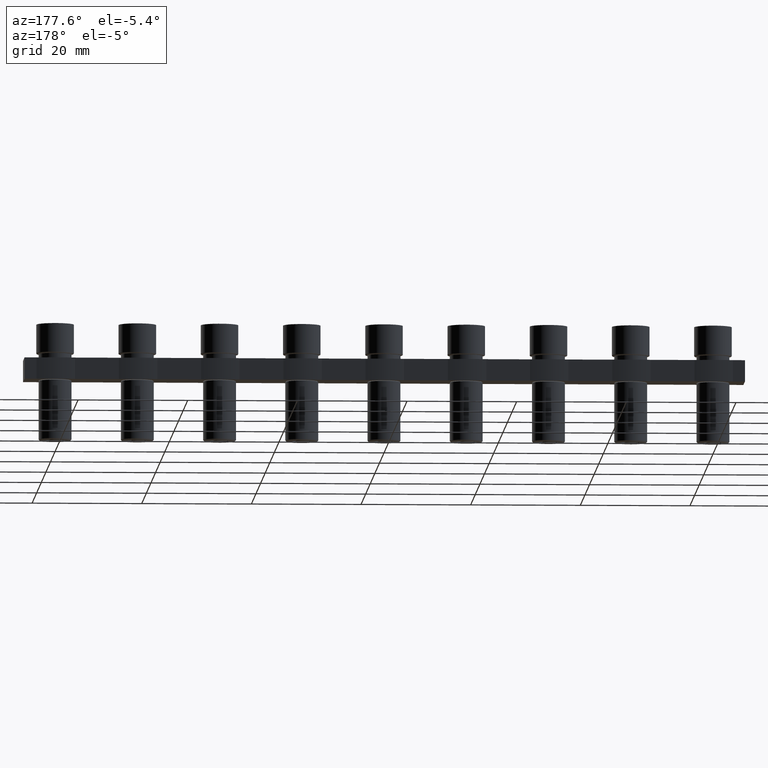
[diagram: clean part render]
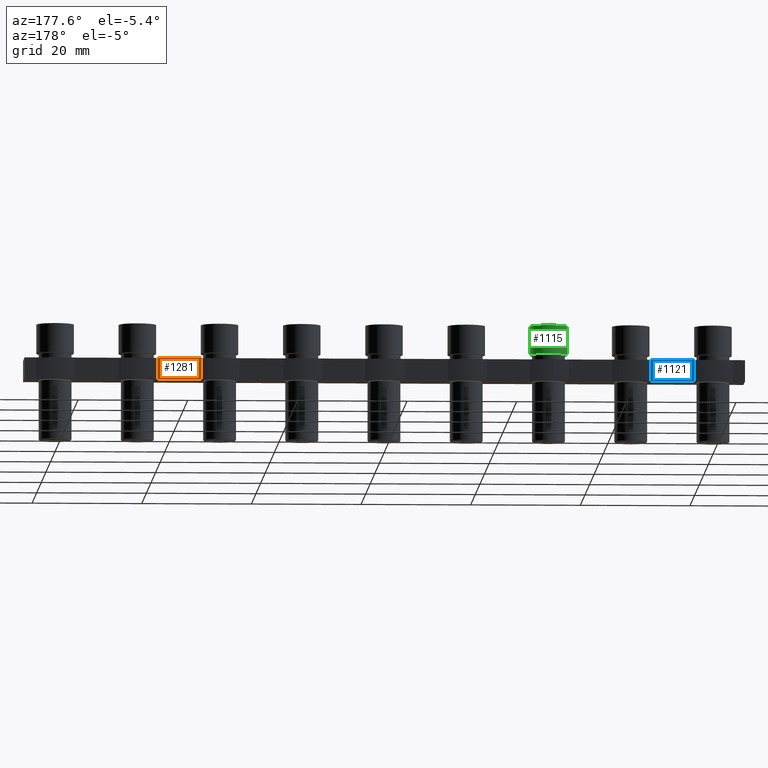
[diagram: same view with three faces highlighted in distinct colors, each labeled with its STEP entity id]
A machine part, auxiliary view with three faces highlighted in distinct colors.
Their STEP definitions:

[orange] entity #1281 — the highlighted planar face has unit normal (0, -1, 0).
#575 = EDGE_CURVE ( 'NONE', #4384, #4341, #15046, .T. ) ;
#606 = EDGE_CURVE ( 'NONE', #4371, #4388, #15176, .T. ) ;
#1281 = ADVANCED_FACE ( 'NONE', ( #13376 ), #13386, .F. ) ;
#1502 = VECTOR ( 'NONE', #15239, 1000.000000000000000 ) ;
#2238 = VECTOR ( 'NONE', #15061, 1000.000000000000000 ) ;
#4341 = VERTEX_POINT ( 'NONE', #14022 ) ;
#4371 = VERTEX_POINT ( 'NONE', #6989 ) ;
#4384 = VERTEX_POINT ( 'NONE', #6999 ) ;
#4388 = VERTEX_POINT ( 'NONE', #6990 ) ;
#6028 = EDGE_LOOP ( 'NONE', ( #6719, #6734, #6736, #6773 ) ) ;
#6719 = ORIENTED_EDGE ( 'NONE', *, *, #11978, .T. ) ;
#6734 = ORIENTED_EDGE ( 'NONE', *, *, #575, .T. ) ;
#6736 = ORIENTED_EDGE ( 'NONE', *, *, #11939, .T. ) ;
#6773 = ORIENTED_EDGE ( 'NONE', *, *, #606, .T. ) ;
#6989 = CARTESIAN_POINT ( 'NONE',  ( 93.50000000000174800, 3.350000000000387300, -4.800000000000001600 ) ) ;
#6990 = CARTESIAN_POINT ( 'NONE',  ( 93.50000000000169100, 3.350000000000391300, -0.9000000000000014700 ) ) ;
#6999 = CARTESIAN_POINT ( 'NONE',  ( 101.5000000000015600, 3.350000000000444600, -0.9000000000000014700 ) ) ;
#7666 = DIRECTION ( 'NONE',  ( 1.000000000000000000, 1.245679091791855700E-016, -0.0000000000000000000 ) ) ;
#7670 = LINE ( 'NONE', #7678, #13010 ) ;
#7678 = CARTESIAN_POINT ( 'NONE',  ( 73.85000000000164300, 3.350000000000387800, -0.9000000000000014700 ) ) ;
#11939 = EDGE_CURVE ( 'NONE', #4341, #4371, #16571, .T. ) ;
#11978 = EDGE_CURVE ( 'NONE', #4388, #4384, #7670, .T. ) ;
#12905 = VECTOR ( 'NONE', #16270, 1000.000000000000000 ) ;
#13010 = VECTOR ( 'NONE', #7666, 1000.000000000000000 ) ;
#13177 = AXIS2_PLACEMENT_3D ( 'NONE', #13360, #13374, #13378 ) ;
#13360 = CARTESIAN_POINT ( 'NONE',  ( 73.85000000000164300, 3.350000000000387800, -0.9000000000000014700 ) ) ;
#13374 = DIRECTION ( 'NONE',  ( 1.245679091791855700E-016, -1.000000000000000000, 0.0000000000000000000 ) ) ;
#13376 = FACE_OUTER_BOUND ( 'NONE', #6028, .T. ) ;
#13378 = DIRECTION ( 'NONE',  ( -1.000000000000000000, -1.245679091791855700E-016, 0.0000000000000000000 ) ) ;
#13386 = PLANE ( 'NONE',  #13177 ) ;
#14022 = CARTESIAN_POINT ( 'NONE',  ( 101.5000000000015600, 3.350000000000444600, -4.800000000000001600 ) ) ;
#15017 = CARTESIAN_POINT ( 'NONE',  ( 101.5000000000016300, 3.350000000000453500, -11.80160695840604700 ) ) ;
#15046 = LINE ( 'NONE', #15017, #2238 ) ;
#15061 = DIRECTION ( 'NONE',  ( -0.0000000000000000000, -0.0000000000000000000, -1.000000000000000000 ) ) ;
#15176 = LINE ( 'NONE', #15251, #1502 ) ;
#15239 = DIRECTION ( 'NONE',  ( 0.0000000000000000000, 0.0000000000000000000, 1.000000000000000000 ) ) ;
#15251 = CARTESIAN_POINT ( 'NONE',  ( 93.50000000000172000, 3.350000000000387300, -11.80160695840604700 ) ) ;
#16270 = DIRECTION ( 'NONE',  ( -1.000000000000000000, -2.491358183583711900E-016, -0.0000000000000000000 ) ) ;
#16554 = CARTESIAN_POINT ( 'NONE',  ( 152.8500000000016400, 3.350000000000404200, -4.800000000000001600 ) ) ;
#16571 = LINE ( 'NONE', #16554, #12905 ) ;

[blue] entity #1121 — the highlighted planar face has unit normal (0, -1, 0).
#1121 = ADVANCED_FACE ( 'NONE', ( #8754 ), #8775, .F. ) ;
#2161 = AXIS2_PLACEMENT_3D ( 'NONE', #8730, #8757, #8758 ) ;
#2425 = LINE ( 'NONE', #2461, #8447 ) ;
#2461 = CARTESIAN_POINT ( 'NONE',  ( 3.500000000000011500, 3.350000000000088900, -11.80160695840604700 ) ) ;
#2463 = DIRECTION ( 'NONE',  ( -0.0000000000000000000, -0.0000000000000000000, -1.000000000000000000 ) ) ;
#2576 = CARTESIAN_POINT ( 'NONE',  ( 11.50000000000164000, 3.350000000000089800, -11.80160695840604700 ) ) ;
#2581 = LINE ( 'NONE', #2576, #8484 ) ;
#2592 = DIRECTION ( 'NONE',  ( -0.0000000000000000000, -0.0000000000000000000, -1.000000000000000000 ) ) ;
#4357 = VERTEX_POINT ( 'NONE', #7509 ) ;
#4363 = VERTEX_POINT ( 'NONE', #7492 ) ;
#4383 = VERTEX_POINT ( 'NONE', #7010 ) ;
#4396 = VERTEX_POINT ( 'NONE', #7003 ) ;
#4921 = ORIENTED_EDGE ( 'NONE', *, *, #11956, .F. ) ;
#5793 = EDGE_LOOP ( 'NONE', ( #4921, #15632, #15647, #15648 ) ) ;
#7003 = CARTESIAN_POINT ( 'NONE',  ( 11.50000000000156100, 3.350000000000081400, -0.9000000000000014700 ) ) ;
#7010 = CARTESIAN_POINT ( 'NONE',  ( 3.500000000000087900, 3.350000000000080500, -0.9000000000000014700 ) ) ;
#7492 = CARTESIAN_POINT ( 'NONE',  ( 11.50000000000156100, 3.350000000000081400, -4.800000000000001600 ) ) ;
#7509 = CARTESIAN_POINT ( 'NONE',  ( 3.500000000000087900, 3.350000000000080500, -4.800000000000001600 ) ) ;
#7534 = LINE ( 'NONE', #7550, #13035 ) ;
#7550 = CARTESIAN_POINT ( 'NONE',  ( 31.15000000000001300, 3.350000000000084500, -0.9000000000000014700 ) ) ;
#7556 = DIRECTION ( 'NONE',  ( -1.000000000000000000, -1.245679091791856200E-016, -0.0000000000000000000 ) ) ;
#7621 = CARTESIAN_POINT ( 'NONE',  ( -62.85000000000001600, 3.350000000000089400, -4.800000000000001600 ) ) ;
#7633 = DIRECTION ( 'NONE',  ( 1.000000000000000000, -0.0000000000000000000, 0.0000000000000000000 ) ) ;
#7647 = LINE ( 'NONE', #7621, #12952 ) ;
#8447 = VECTOR ( 'NONE', #2463, 1000.000000000000000 ) ;
#8484 = VECTOR ( 'NONE', #2592, 1000.000000000000000 ) ;
#8730 = CARTESIAN_POINT ( 'NONE',  ( 31.15000000000001300, 3.350000000000084500, -0.9000000000000014700 ) ) ;
#8754 = FACE_OUTER_BOUND ( 'NONE', #5793, .T. ) ;
#8757 = DIRECTION ( 'NONE',  ( 1.245679091791856200E-016, -1.000000000000000000, 0.0000000000000000000 ) ) ;
#8758 = DIRECTION ( 'NONE',  ( 1.000000000000000000, 1.245679091791856200E-016, 0.0000000000000000000 ) ) ;
#8775 = PLANE ( 'NONE',  #2161 ) ;
#11956 = EDGE_CURVE ( 'NONE', #4357, #4363, #7647, .T. ) ;
#12058 = EDGE_CURVE ( 'NONE', #4396, #4383, #7534, .T. ) ;
#12092 = EDGE_CURVE ( 'NONE', #4383, #4357, #2425, .T. ) ;
#12113 = EDGE_CURVE ( 'NONE', #4396, #4363, #2581, .T. ) ;
#12952 = VECTOR ( 'NONE', #7633, 1000.000000000000000 ) ;
#13035 = VECTOR ( 'NONE', #7556, 1000.000000000000000 ) ;
#15632 = ORIENTED_EDGE ( 'NONE', *, *, #12092, .F. ) ;
#15647 = ORIENTED_EDGE ( 'NONE', *, *, #12058, .F. ) ;
#15648 = ORIENTED_EDGE ( 'NONE', *, *, #12113, .T. ) ;

[green] entity #1115 — the highlighted cylindrical surface (edge-blend (fillet) strip) has radius 3.425 mm, axis along (0, 0, -1).
#1115 = ADVANCED_FACE ( 'NONE', ( #8698 ), #8686, .T. ) ;
#2155 = AXIS2_PLACEMENT_3D ( 'NONE', #8714, #8716, #8717 ) ;
#4024 = VERTEX_POINT ( 'NONE', #14227 ) ;
#4147 = VERTEX_POINT ( 'NONE', #14286 ) ;
#4276 = VERTEX_POINT ( 'NONE', #13904 ) ;
#4314 = VERTEX_POINT ( 'NONE', #13890 ) ;
#4892 = ORIENTED_EDGE ( 'NONE', *, *, #11474, .T. ) ;
#4898 = ORIENTED_EDGE ( 'NONE', *, *, #11930, .F. ) ;
#5799 = EDGE_LOOP ( 'NONE', ( #4898, #15631, #15659, #4892 ) ) ;
#8010 = DIRECTION ( 'NONE',  ( -0.0000000000000000000, -0.0000000000000000000, 1.000000000000000000 ) ) ;
#8011 = DIRECTION ( 'NONE',  ( 1.000000000000000000, 2.491358183583727700E-016, 0.0000000000000000000 ) ) ;
#8016 = CARTESIAN_POINT ( 'NONE',  ( 30.00000000000165200, 6.243429516965604400E-014, 5.400000000000000400 ) ) ;
#8686 = CYLINDRICAL_SURFACE ( 'NONE', #2155, 3.424999999999997600 ) ;
#8698 = FACE_OUTER_BOUND ( 'NONE', #5799, .T. ) ;
#8714 = CARTESIAN_POINT ( 'NONE',  ( 30.00000000000165200, 6.243429516965604400E-014, 5.400000000000000400 ) ) ;
#8716 = DIRECTION ( 'NONE',  ( 0.0000000000000000000, 0.0000000000000000000, -1.000000000000000000 ) ) ;
#8717 = DIRECTION ( 'NONE',  ( 1.000000000000000000, 2.491358183583727700E-016, 0.0000000000000000000 ) ) ;
#11474 = EDGE_CURVE ( 'NONE', #4024, #4147, #12338, .T. ) ;
#11869 = EDGE_CURVE ( 'NONE', #4314, #4024, #16352, .T. ) ;
#11930 = EDGE_CURVE ( 'NONE', #4276, #4147, #16538, .T. ) ;
#12044 = EDGE_CURVE ( 'NONE', #4314, #4276, #13029, .T. ) ;
#12178 = CARTESIAN_POINT ( 'NONE',  ( 30.00000000000165200, 6.264401593401002600E-014, 0.1999999999999996500 ) ) ;
#12181 = DIRECTION ( 'NONE',  ( 0.0000000000000000000, 0.0000000000000000000, 1.000000000000000000 ) ) ;
#12182 = DIRECTION ( 'NONE',  ( -1.000000000000000000, -2.491358183583727700E-016, 0.0000000000000000000 ) ) ;
#12338 = CIRCLE ( 'NONE', #12381, 3.424999999999997600 ) ;
#12381 = AXIS2_PLACEMENT_3D ( 'NONE', #12178, #12181, #12182 ) ;
#12797 = VECTOR ( 'NONE', #16373, 1000.000000000000000 ) ;
#12934 = VECTOR ( 'NONE', #16550, 1000.000000000000000 ) ;
#13029 = CIRCLE ( 'NONE', #13041, 3.424999999999997600 ) ;
#13041 = AXIS2_PLACEMENT_3D ( 'NONE', #8016, #8010, #8011 ) ;
#13890 = CARTESIAN_POINT ( 'NONE',  ( 33.42500000000164600, 6.328758534753346700E-014, 5.400000000000000400 ) ) ;
#13904 = CARTESIAN_POINT ( 'NONE',  ( 26.57500000000165100, 6.116156346307064500E-014, 5.400000000000000400 ) ) ;
#14227 = CARTESIAN_POINT ( 'NONE',  ( 33.42500000000164600, 6.328758534753346700E-014, 0.1999999999999996500 ) ) ;
#14286 = CARTESIAN_POINT ( 'NONE',  ( 26.57500000000165100, 6.116156346307064500E-014, 0.1999999999999996500 ) ) ;
#15631 = ORIENTED_EDGE ( 'NONE', *, *, #12044, .F. ) ;
#15659 = ORIENTED_EDGE ( 'NONE', *, *, #11869, .T. ) ;
#16352 = LINE ( 'NONE', #16371, #12797 ) ;
#16371 = CARTESIAN_POINT ( 'NONE',  ( 33.42500000000164600, 6.328758534753346700E-014, 5.400000000000000400 ) ) ;
#16373 = DIRECTION ( 'NONE',  ( 0.0000000000000000000, 0.0000000000000000000, -1.000000000000000000 ) ) ;
#16538 = LINE ( 'NONE', #16549, #12934 ) ;
#16549 = CARTESIAN_POINT ( 'NONE',  ( 26.57500000000165100, 6.116156346307064500E-014, 5.400000000000000400 ) ) ;
#16550 = DIRECTION ( 'NONE',  ( 0.0000000000000000000, 0.0000000000000000000, -1.000000000000000000 ) ) ;